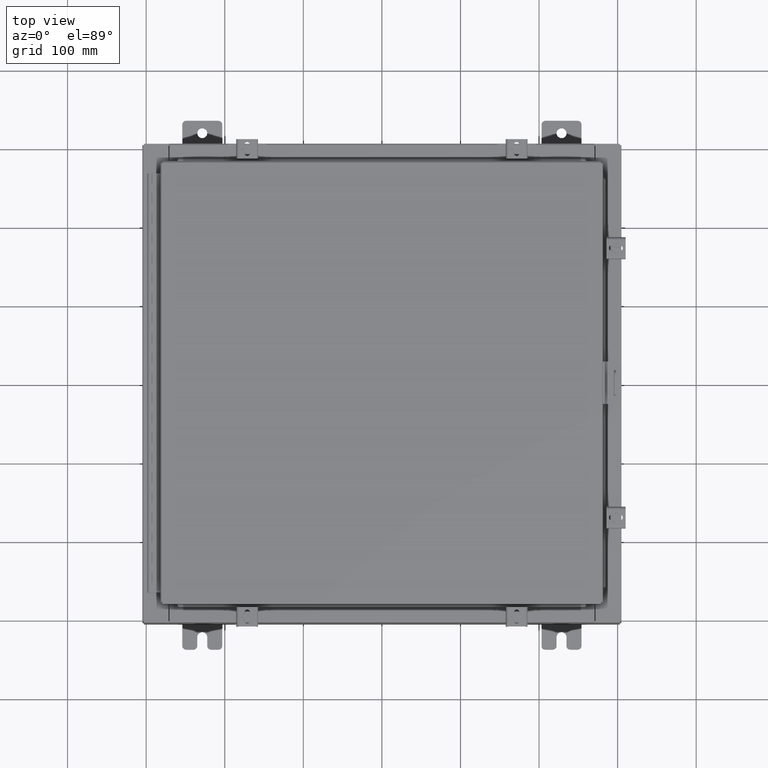
[diagram: clean part render]
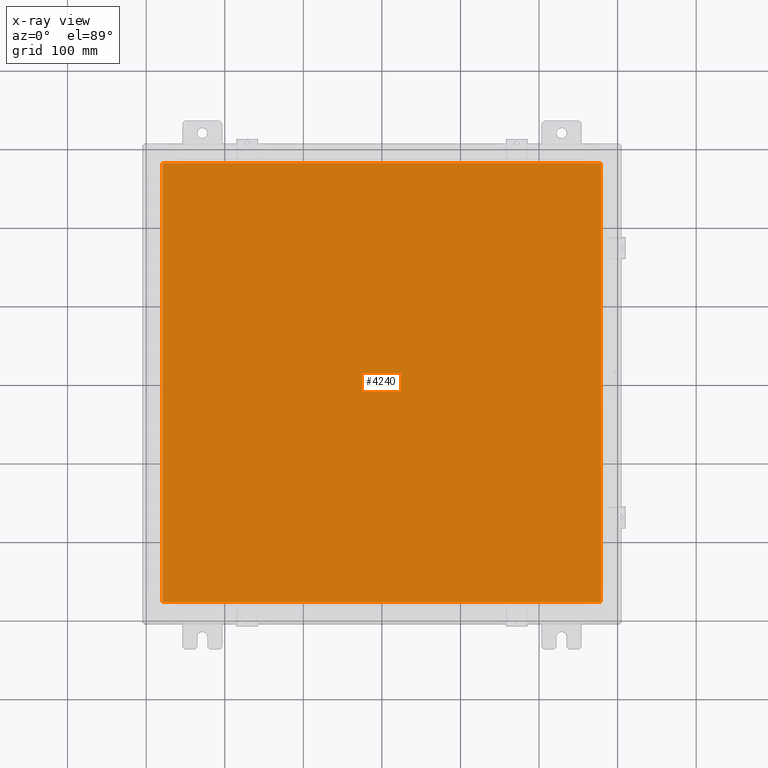
[diagram: x-ray — body ghosted, one internal face saturated and labeled with its STEP entity id]
A machine part, top view, then the same camera in x-ray: the body is ghosted and one INTERNAL B-rep face — a face not visible from any outside direction — is saturated and labeled: STEP entity #4240.
In plain terms, the highlighted planar face has unit normal (0, 0, -1).
Its self-contained STEP definition (entity closure, byte-faithful):
#104 = VECTOR ( 'NONE', #2286, 39.37007874015748100 ) ;
#2286 = DIRECTION ( 'NONE',  ( 0.0000000000000000000, -1.000000000000000000, 0.0000000000000000000 ) ) ;
#4240 = ADVANCED_FACE ( 'NONE', ( #26849 ), #28060, .T. ) ;
#4358 = EDGE_CURVE ( 'NONE', #27620, #5734, #10420, .T. ) ;
#5637 = CARTESIAN_POINT ( 'NONE',  ( 10.99029999999999800, 11.00629999999999600, -0.07470000000000019700 ) ) ;
#5734 = VERTEX_POINT ( 'NONE', #20169 ) ;
#7558 = LINE ( 'NONE', #32259, #104 ) ;
#8952 = CARTESIAN_POINT ( 'NONE',  ( -10.99030000000000100, 11.00629999999999600, -0.07470000000000000300 ) ) ;
#9011 = CARTESIAN_POINT ( 'NONE',  ( 10.99029999999999600, 11.00629999999999600, -0.07470000000000000300 ) ) ;
#10420 = LINE ( 'NONE', #13500, #22909 ) ;
#11498 = DIRECTION ( 'NONE',  ( 0.0000000000000000000, 1.000000000000000000, 0.0000000000000000000 ) ) ;
#12524 = ORIENTED_EDGE ( 'NONE', *, *, #4358, .F. ) ;
#13030 = DIRECTION ( 'NONE',  ( -1.000000000000000000, -0.0000000000000000000, -0.0000000000000000000 ) ) ;
#13090 = CARTESIAN_POINT ( 'NONE',  ( 0.0000000000000000000, 0.0000000000000000000, -0.07470000000000000300 ) ) ;
#13368 = EDGE_CURVE ( 'NONE', #14603, #27620, #7558, .T. ) ;
#13500 = CARTESIAN_POINT ( 'NONE',  ( -10.99030000000000000, -11.00630000000000100, -0.07469999999999910000 ) ) ;
#13910 = CARTESIAN_POINT ( 'NONE',  ( 10.99029999999999600, -11.00630000000000100, -0.07470000000000019700 ) ) ;
#14410 = EDGE_CURVE ( 'NONE', #27599, #14603, #18463, .T. ) ;
#14603 = VERTEX_POINT ( 'NONE', #8952 ) ;
#15598 = DIRECTION ( 'NONE',  ( -1.000000000000000000, 0.0000000000000000000, -0.0000000000000000000 ) ) ;
#16747 = EDGE_CURVE ( 'NONE', #5734, #27599, #31270, .T. ) ;
#18463 = LINE ( 'NONE', #5637, #31006 ) ;
#18565 = ORIENTED_EDGE ( 'NONE', *, *, #16747, .F. ) ;
#20169 = CARTESIAN_POINT ( 'NONE',  ( 10.99029999999999600, -11.00630000000000100, -0.07470000000000000300 ) ) ;
#21979 = EDGE_LOOP ( 'NONE', ( #18565, #12524, #23270, #32062 ) ) ;
#22909 = VECTOR ( 'NONE', #30926, 39.37007874015748100 ) ;
#23270 = ORIENTED_EDGE ( 'NONE', *, *, #13368, .F. ) ;
#24069 = CARTESIAN_POINT ( 'NONE',  ( -10.99030000000000000, -11.00630000000000100, -0.07470000000000000300 ) ) ;
#24587 = VECTOR ( 'NONE', #11498, 39.37007874015748100 ) ;
#25705 = AXIS2_PLACEMENT_3D ( 'NONE', #13090, #30590, #15598 ) ;
#26849 = FACE_OUTER_BOUND ( 'NONE', #21979, .T. ) ;
#27599 = VERTEX_POINT ( 'NONE', #9011 ) ;
#27620 = VERTEX_POINT ( 'NONE', #24069 ) ;
#28060 = PLANE ( 'NONE',  #25705 ) ;
#30590 = DIRECTION ( 'NONE',  ( 0.0000000000000000000, 0.0000000000000000000, -1.000000000000000000 ) ) ;
#30926 = DIRECTION ( 'NONE',  ( 1.000000000000000000, -0.0000000000000000000, -0.0000000000000000000 ) ) ;
#31006 = VECTOR ( 'NONE', #13030, 39.37007874015748100 ) ;
#31270 = LINE ( 'NONE', #13910, #24587 ) ;
#32062 = ORIENTED_EDGE ( 'NONE', *, *, #14410, .F. ) ;
#32259 = CARTESIAN_POINT ( 'NONE',  ( -10.99030000000000500, 11.00629999999999600, -0.07470000000000133500 ) ) ;